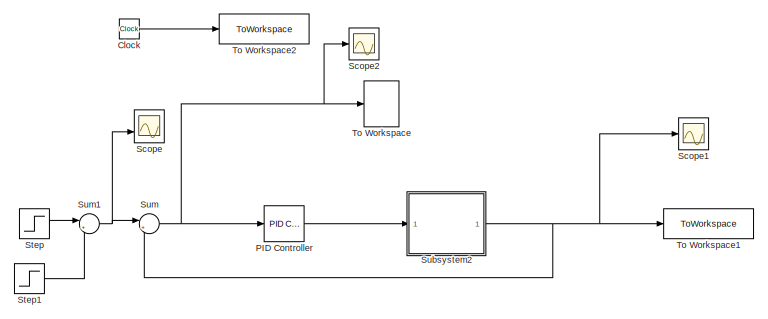
[diagram: root canvas - part 1/3, left side, full height]
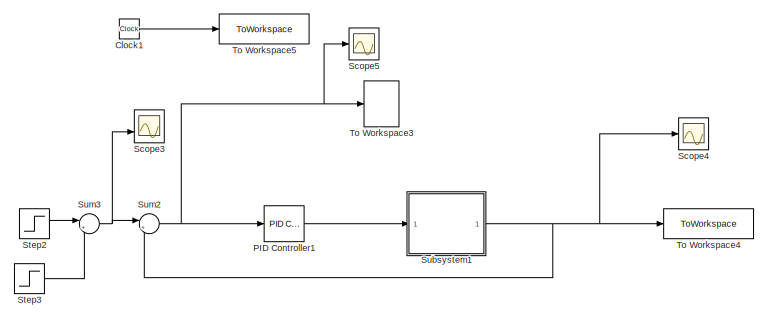
[diagram: root canvas - part 2/3, center side, full height]
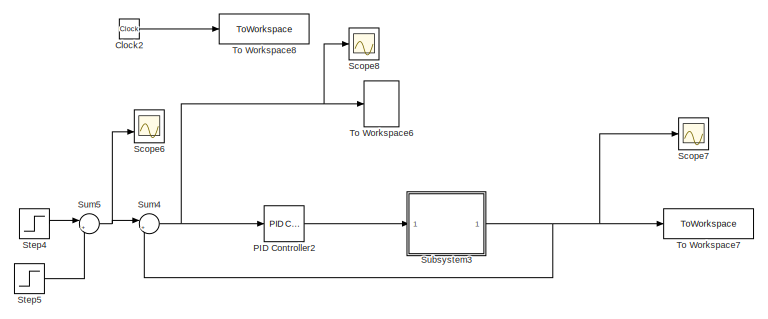
[diagram: root canvas - part 3/3, right side, full height]
MODEL slx_838fb5d9151b
KIND model
CONFIG AbsTol = auto
CONFIG EnableMultiTasking = off
CONFIG FixedStep = auto
CONFIG MaxStep = 0.1
CONFIG MinStep = auto
CONFIG RelTol = 1e-3
CONFIG SampleTimeConstraint = Unconstrained
CONFIG SolverName = VariableStepAuto
CONFIG StartTime = 0
CONFIG StopTime = t_simulation
BLOCK [Clock] Clock
BLOCK [Clock] Clock1
BLOCK [Clock] Clock2
BLOCK [Reference] PID Controller  REF=slpidlib/PID Controller
  LibrarySourceBlock = simulink/Continuous/PID Controller
  SourceBlock = slpidlib/PID Controller
  SourceType = PID 1dof
BLOCK [Reference] PID Controller1  REF=slpidlib/PID Controller
  LibrarySourceBlock = simulink/Continuous/PID Controller
  SourceBlock = slpidlib/PID Controller
  SourceType = PID 1dof
BLOCK [Reference] PID Controller2  REF=slpidlib/PID Controller
  LibrarySourceBlock = simulink/Continuous/PID Controller
  SourceBlock = slpidlib/PID Controller
  SourceType = PID 1dof
BLOCK [Scope] Scope
  Floating = off
  NumInputPorts = 2
  ScopeSpecificationString = Simulink.scopes.TimeScopeBlockCfg('CurrentConfiguration', extmgr.ConfigurationSet(extmgr.Configuration('Core','General UI',true),extmgr.Configuration('Core','Source UI',true),extmgr.Configuration('Sources','WiredSimulink',true),extmgr.Configuration('Visuals','Time Domain',true,'SerializedDisplays',{struct('MinYLimReal','-1.875','MaxYLimReal','16.875','YLabelReal','','MinYLimMag','0.00000','MaxYLim...<+1355ch>
BLOCK [Scope] Scope1
  Floating = off
  NumInputPorts = 1
  ScopeSpecificationString = Simulink.scopes.TimeScopeBlockCfg('CurrentConfiguration', extmgr.ConfigurationSet(extmgr.Configuration('Core','General UI',true),extmgr.Configuration('Core','Source UI',true),extmgr.Configuration('Sources','WiredSimulink',true,'DataLoggingVariableName','ScopeData1'),extmgr.Configuration('Visuals','Time Domain',true,'SerializedDisplays',{struct('MinYLimReal','8.40068','MaxYLimReal','15.54779','YLab...<+1401ch>
BLOCK [Scope] Scope2
  Floating = off
  NumInputPorts = 1
  ScopeSpecificationString = Simulink.scopes.TimeScopeBlockCfg('CurrentConfiguration', extmgr.ConfigurationSet(extmgr.Configuration('Core','General UI',true),extmgr.Configuration('Core','Source UI',true),extmgr.Configuration('Sources','WiredSimulink',true,'DataLoggingVariableName','ScopeData1'),extmgr.Configuration('Visuals','Time Domain',true,'SerializedDisplays',{struct('MinYLimReal','-4.02534','MaxYLimReal','3.78059','YLab...<+1362ch>
BLOCK [Scope] Scope3
  Floating = off
  NumInputPorts = 2
  ScopeSpecificationString = Simulink.scopes.TimeScopeBlockCfg('CurrentConfiguration', extmgr.ConfigurationSet(extmgr.Configuration('Core','General UI',true),extmgr.Configuration('Core','Source UI',true),extmgr.Configuration('Sources','WiredSimulink',true,'DataLoggingVariableName','ScopeData2'),extmgr.Configuration('Visuals','Time Domain',true,'SerializedDisplays',{struct('MinYLimReal','-1.875','MaxYLimReal','16.875','YLabelR...<+1394ch>
BLOCK [Scope] Scope4
  Floating = off
  NumInputPorts = 1
  ScopeSpecificationString = Simulink.scopes.TimeScopeBlockCfg('CurrentConfiguration', extmgr.ConfigurationSet(extmgr.Configuration('Core','General UI',true),extmgr.Configuration('Core','Source UI',true),extmgr.Configuration('Sources','WiredSimulink',true,'DataLoggingVariableName','ScopeData3'),extmgr.Configuration('Visuals','Time Domain',true,'SerializedDisplays',{struct('MinYLimReal','7.15705','MaxYLimReal','18.73364','YLab...<+1401ch>
BLOCK [Scope] Scope5
  Floating = off
  NumInputPorts = 1
  ScopeSpecificationString = Simulink.scopes.TimeScopeBlockCfg('CurrentConfiguration', extmgr.ConfigurationSet(extmgr.Configuration('Core','General UI',true),extmgr.Configuration('Core','Source UI',true),extmgr.Configuration('Sources','WiredSimulink',true,'DataLoggingVariableName','ScopeData4'),extmgr.Configuration('Visuals','Time Domain',true,'SerializedDisplays',{struct('MinYLimReal','-6.45942','MaxYLimReal','6.27327','YLab...<+1362ch>
BLOCK [Scope] Scope6
  Floating = off
  NumInputPorts = 2
  ScopeSpecificationString = Simulink.scopes.TimeScopeBlockCfg('CurrentConfiguration', extmgr.ConfigurationSet(extmgr.Configuration('Core','General UI',true),extmgr.Configuration('Core','Source UI',true),extmgr.Configuration('Sources','WiredSimulink',true,'DataLoggingVariableName','ScopeData5'),extmgr.Configuration('Visuals','Time Domain',true,'SerializedDisplays',{struct('MinYLimReal','-1.875','MaxYLimReal','16.875','YLabelR...<+1394ch>
BLOCK [Scope] Scope7
  Floating = off
  NumInputPorts = 1
  ScopeSpecificationString = Simulink.scopes.TimeScopeBlockCfg('CurrentConfiguration', extmgr.ConfigurationSet(extmgr.Configuration('Core','General UI',true),extmgr.Configuration('Core','Source UI',true),extmgr.Configuration('Sources','WiredSimulink',true,'DataLoggingVariableName','ScopeData6'),extmgr.Configuration('Visuals','Time Domain',true,'SerializedDisplays',{struct('MinYLimReal','8.40068','MaxYLimReal','15.54779','YLab...<+1401ch>
BLOCK [Scope] Scope8
  Floating = off
  NumInputPorts = 1
  ScopeSpecificationString = Simulink.scopes.TimeScopeBlockCfg('CurrentConfiguration', extmgr.ConfigurationSet(extmgr.Configuration('Core','General UI',true),extmgr.Configuration('Core','Source UI',true),extmgr.Configuration('Sources','WiredSimulink',true,'DataLoggingVariableName','ScopeData7'),extmgr.Configuration('Visuals','Time Domain',true,'SerializedDisplays',{struct('MinYLimReal','-6.45942','MaxYLimReal','6.27327','YLab...<+1362ch>
BLOCK [Step] Step
  After = Tzad + dTzad
  Before = Tzad
  SampleTime = 0
  Time = tskok
BLOCK [Step] Step1
  After = dTzad
  SampleTime = 0
  Time = tskok2
BLOCK [Step] Step2
  After = Tzad + dTzad
  Before = Tzad
  SampleTime = 0
  Time = tskok
BLOCK [Step] Step3
  After = dTzad
  SampleTime = 0
  Time = tskok2
BLOCK [Step] Step4
  After = Tzad + dTzad
  Before = Tzad
  SampleTime = 0
  Time = tskok
BLOCK [Step] Step5
  After = dTzad
  SampleTime = 0
  Time = tskok2
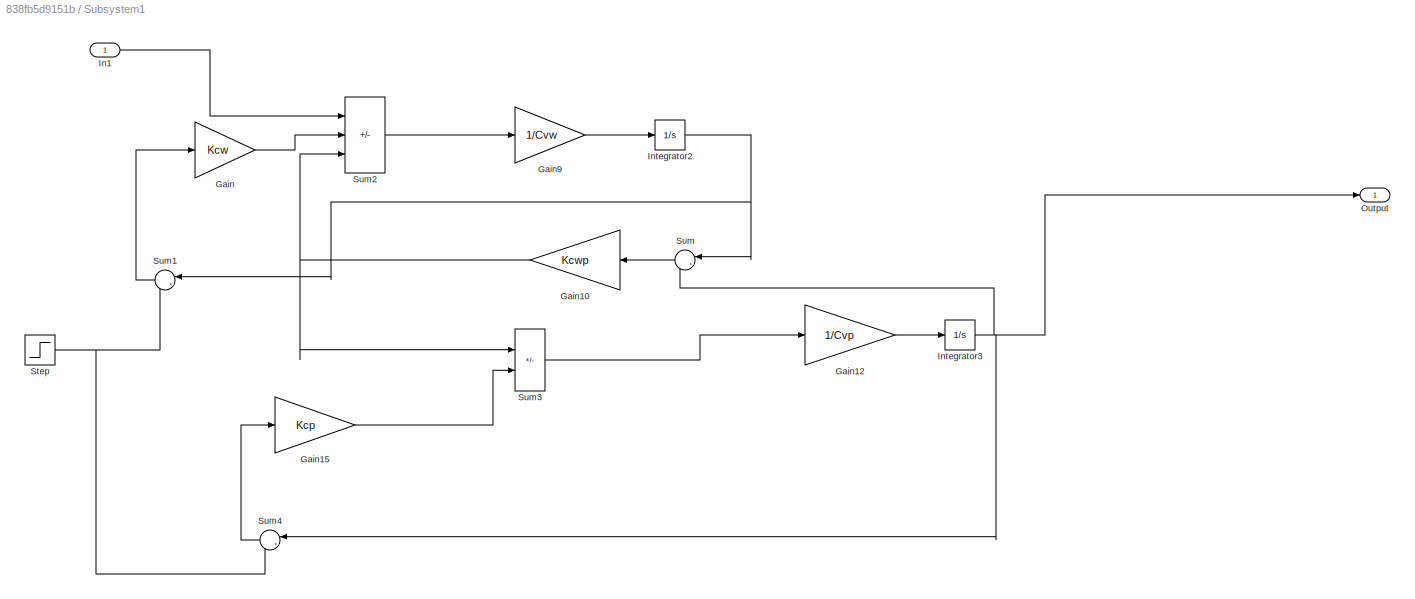
BLOCK [SubSystem] Subsystem1
BLOCK [Gain] Subsystem1/Gain
  Gain = Kcw
BLOCK [Gain] Subsystem1/Gain10
  Gain = Kcwp
  NameLocation = top
BLOCK [Gain] Subsystem1/Gain12
  Gain = 1/Cvp
BLOCK [Gain] Subsystem1/Gain15
  Gain = Kcp
BLOCK [Gain] Subsystem1/Gain9
  Gain = 1/Cvw
BLOCK [Inport] Subsystem1/In1
BLOCK [Integrator] Subsystem1/Integrator2
  InitialCondition = Twew0
BLOCK [Integrator] Subsystem1/Integrator3
  InitialCondition = Tp0
BLOCK [Outport] Subsystem1/Output
BLOCK [Step] Subsystem1/Step
  After = Tzew0 +Tzad
  Before = Tzew0
  SampleTime = 0
  Time = tskok
BLOCK [Sum] Subsystem1/Sum
  Inputs = |+-
  NameLocation = top
BLOCK [Sum] Subsystem1/Sum1
  Inputs = |+-
  NameLocation = top
BLOCK [Sum] Subsystem1/Sum2
  IconShape = rectangular
  Inputs = +--
BLOCK [Sum] Subsystem1/Sum3
  IconShape = rectangular
  Inputs = |+-
BLOCK [Sum] Subsystem1/Sum4
  Inputs = |+-
  NameLocation = top
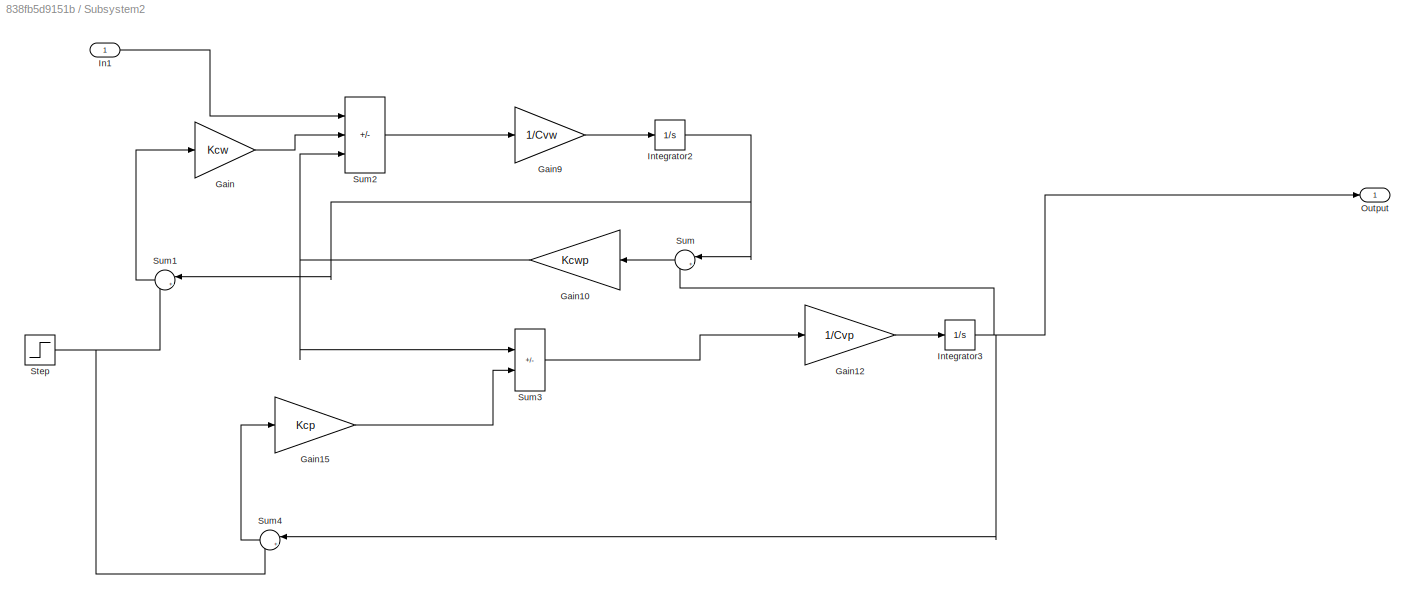
BLOCK [SubSystem] Subsystem2
BLOCK [Gain] Subsystem2/Gain
  Gain = Kcw
BLOCK [Gain] Subsystem2/Gain10
  Gain = Kcwp
  NameLocation = top
BLOCK [Gain] Subsystem2/Gain12
  Gain = 1/Cvp
BLOCK [Gain] Subsystem2/Gain15
  Gain = Kcp
BLOCK [Gain] Subsystem2/Gain9
  Gain = 1/Cvw
BLOCK [Inport] Subsystem2/In1
BLOCK [Integrator] Subsystem2/Integrator2
  InitialCondition = Twew0
BLOCK [Integrator] Subsystem2/Integrator3
  InitialCondition = Tp0
BLOCK [Outport] Subsystem2/Output
BLOCK [Step] Subsystem2/Step
  After = Tzew0 +Tzad
  Before = Tzew0
  SampleTime = 0
  Time = tskok
BLOCK [Sum] Subsystem2/Sum
  Inputs = |+-
  NameLocation = top
BLOCK [Sum] Subsystem2/Sum1
  Inputs = |+-
  NameLocation = top
BLOCK [Sum] Subsystem2/Sum2
  IconShape = rectangular
  Inputs = +--
BLOCK [Sum] Subsystem2/Sum3
  IconShape = rectangular
  Inputs = |+-
BLOCK [Sum] Subsystem2/Sum4
  Inputs = |+-
  NameLocation = top
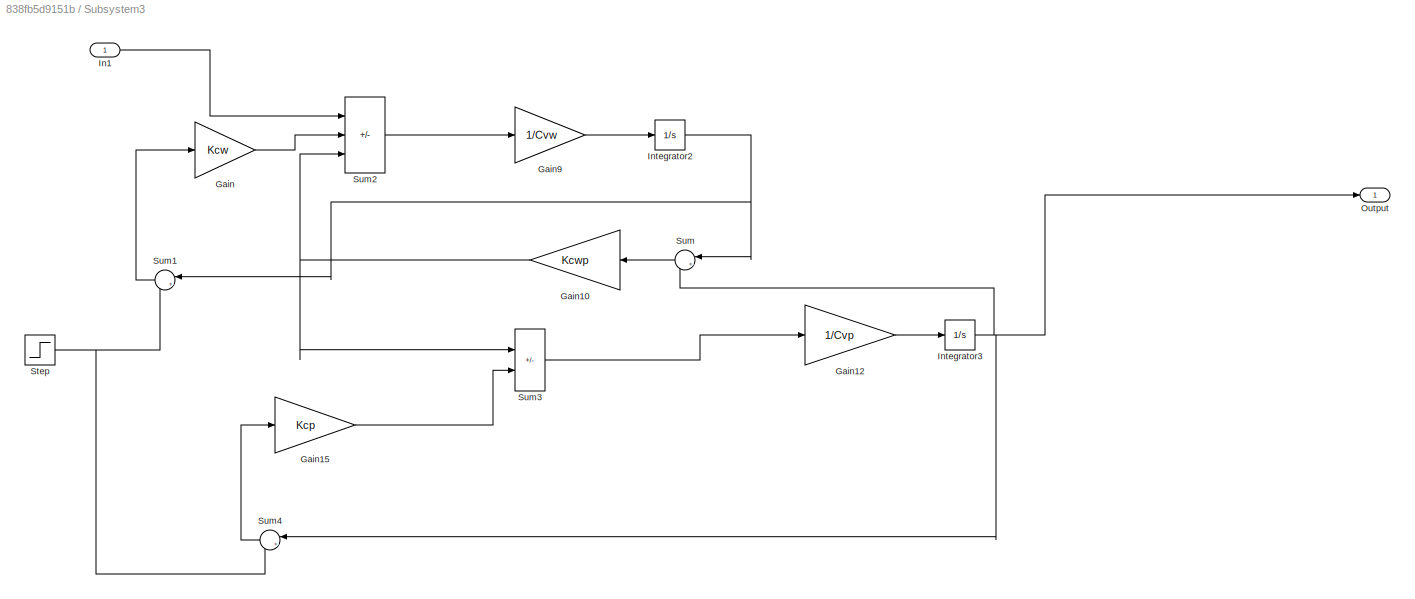
BLOCK [SubSystem] Subsystem3
BLOCK [Gain] Subsystem3/Gain
  Gain = Kcw
BLOCK [Gain] Subsystem3/Gain10
  Gain = Kcwp
  NameLocation = top
BLOCK [Gain] Subsystem3/Gain12
  Gain = 1/Cvp
BLOCK [Gain] Subsystem3/Gain15
  Gain = Kcp
BLOCK [Gain] Subsystem3/Gain9
  Gain = 1/Cvw
BLOCK [Inport] Subsystem3/In1
BLOCK [Integrator] Subsystem3/Integrator2
  InitialCondition = Twew0
BLOCK [Integrator] Subsystem3/Integrator3
  InitialCondition = Tp0
BLOCK [Outport] Subsystem3/Output
BLOCK [Step] Subsystem3/Step
  After = Tzew0 +Tzad
  Before = Tzew0
  SampleTime = 0
  Time = tskok
BLOCK [Sum] Subsystem3/Sum
  Inputs = |+-
  NameLocation = top
BLOCK [Sum] Subsystem3/Sum1
  Inputs = |+-
  NameLocation = top
BLOCK [Sum] Subsystem3/Sum2
  IconShape = rectangular
  Inputs = +--
BLOCK [Sum] Subsystem3/Sum3
  IconShape = rectangular
  Inputs = |+-
BLOCK [Sum] Subsystem3/Sum4
  Inputs = |+-
  NameLocation = top
BLOCK [Sum] Sum
  Inputs = |+-
BLOCK [Sum] Sum1
  Inputs = |+-
BLOCK [Sum] Sum2
  Inputs = |+-
BLOCK [Sum] Sum3
  Inputs = |+-
BLOCK [Sum] Sum4
  Inputs = |+-
BLOCK [Sum] Sum5
  Inputs = |+-
BLOCK [ToWorkspace] To Workspace
  FixptAsFi = on
  MaxDataPoints = inf
  SampleTime = -1
  VariableName = e
BLOCK [ToWorkspace] To Workspace1
  FixptAsFi = on
  MaxDataPoints = inf
  SampleTime = -1
  VariableName = y
BLOCK [ToWorkspace] To Workspace2
  FixptAsFi = on
  MaxDataPoints = inf
  SampleTime = -1
  VariableName = t
BLOCK [ToWorkspace] To Workspace3
  FixptAsFi = on
  MaxDataPoints = inf
  SampleTime = -1
  VariableName = e1
BLOCK [ToWorkspace] To Workspace4
  FixptAsFi = on
  MaxDataPoints = inf
  SampleTime = -1
  VariableName = y1
BLOCK [ToWorkspace] To Workspace5
  FixptAsFi = on
  MaxDataPoints = inf
  SampleTime = -1
  VariableName = t1
BLOCK [ToWorkspace] To Workspace6
  FixptAsFi = on
  MaxDataPoints = inf
  SampleTime = -1
  VariableName = e2
BLOCK [ToWorkspace] To Workspace7
  FixptAsFi = on
  MaxDataPoints = inf
  SampleTime = -1
  VariableName = y2
BLOCK [ToWorkspace] To Workspace8
  FixptAsFi = on
  MaxDataPoints = inf
  SampleTime = -1
  VariableName = t2
LINE Clock1:1 -> To Workspace5:1
LINE Clock2:1 -> To Workspace8:1
LINE Clock:1 -> To Workspace2:1
LINE PID Controller1:1 -> Subsystem1:1
LINE PID Controller2:1 -> Subsystem3:1
LINE PID Controller:1 -> Subsystem2:1
LINE Step1:1 -> Sum1:2
LINE Step2:1 -> Sum3:1
LINE Step3:1 -> Sum3:2
LINE Step4:1 -> Sum5:1
LINE Step5:1 -> Sum5:2
LINE Step:1 -> Sum1:1
NET Subsystem1/Gain10:1 -> Subsystem1/Sum2:3, Subsystem1/Sum3:1
LINE Subsystem1/Gain12:1 -> Subsystem1/Integrator3:1
LINE Subsystem1/Gain15:1 -> Subsystem1/Sum3:2
LINE Subsystem1/Gain9:1 -> Subsystem1/Integrator2:1
LINE Subsystem1/Gain:1 -> Subsystem1/Sum2:2
LINE Subsystem1/In1:1 -> Subsystem1/Sum2:1
NET Subsystem1/Integrator2:1 -> Subsystem1/Sum1:1, Subsystem1/Sum:1
NET Subsystem1/Integrator3:1 -> Subsystem1/Output:1, Subsystem1/Sum4:1, Subsystem1/Sum:2
NET Subsystem1/Step:1 -> Subsystem1/Sum1:2, Subsystem1/Sum4:2
LINE Subsystem1/Sum1:1 -> Subsystem1/Gain:1
LINE Subsystem1/Sum2:1 -> Subsystem1/Gain9:1
LINE Subsystem1/Sum3:1 -> Subsystem1/Gain12:1
LINE Subsystem1/Sum4:1 -> Subsystem1/Gain15:1
LINE Subsystem1/Sum:1 -> Subsystem1/Gain10:1
NET Subsystem1:1 -> Scope4:1, Sum2:2, To Workspace4:1
NET Subsystem2/Gain10:1 -> Subsystem2/Sum2:3, Subsystem2/Sum3:1
LINE Subsystem2/Gain12:1 -> Subsystem2/Integrator3:1
LINE Subsystem2/Gain15:1 -> Subsystem2/Sum3:2
LINE Subsystem2/Gain9:1 -> Subsystem2/Integrator2:1
LINE Subsystem2/Gain:1 -> Subsystem2/Sum2:2
LINE Subsystem2/In1:1 -> Subsystem2/Sum2:1
NET Subsystem2/Integrator2:1 -> Subsystem2/Sum1:1, Subsystem2/Sum:1
NET Subsystem2/Integrator3:1 -> Subsystem2/Output:1, Subsystem2/Sum4:1, Subsystem2/Sum:2
NET Subsystem2/Step:1 -> Subsystem2/Sum1:2, Subsystem2/Sum4:2
LINE Subsystem2/Sum1:1 -> Subsystem2/Gain:1
LINE Subsystem2/Sum2:1 -> Subsystem2/Gain9:1
LINE Subsystem2/Sum3:1 -> Subsystem2/Gain12:1
LINE Subsystem2/Sum4:1 -> Subsystem2/Gain15:1
LINE Subsystem2/Sum:1 -> Subsystem2/Gain10:1
NET Subsystem2:1 -> Scope1:1, Sum:2, To Workspace1:1
NET Subsystem3/Gain10:1 -> Subsystem3/Sum2:3, Subsystem3/Sum3:1
LINE Subsystem3/Gain12:1 -> Subsystem3/Integrator3:1
LINE Subsystem3/Gain15:1 -> Subsystem3/Sum3:2
LINE Subsystem3/Gain9:1 -> Subsystem3/Integrator2:1
LINE Subsystem3/Gain:1 -> Subsystem3/Sum2:2
LINE Subsystem3/In1:1 -> Subsystem3/Sum2:1
NET Subsystem3/Integrator2:1 -> Subsystem3/Sum1:1, Subsystem3/Sum:1
NET Subsystem3/Integrator3:1 -> Subsystem3/Output:1, Subsystem3/Sum4:1, Subsystem3/Sum:2
NET Subsystem3/Step:1 -> Subsystem3/Sum1:2, Subsystem3/Sum4:2
LINE Subsystem3/Sum1:1 -> Subsystem3/Gain:1
LINE Subsystem3/Sum2:1 -> Subsystem3/Gain9:1
LINE Subsystem3/Sum3:1 -> Subsystem3/Gain12:1
LINE Subsystem3/Sum4:1 -> Subsystem3/Gain15:1
LINE Subsystem3/Sum:1 -> Subsystem3/Gain10:1
NET Subsystem3:1 -> Scope7:1, Sum4:2, To Workspace7:1
NET Sum1:1 -> Scope:2, Sum:1
NET Sum2:1 -> PID Controller1:1, Scope5:1, To Workspace3:1
NET Sum3:1 -> Scope3:2, Sum2:1
NET Sum4:1 -> PID Controller2:1, Scope8:1, To Workspace6:1
NET Sum5:1 -> Scope6:2, Sum4:1
NET Sum:1 -> PID Controller:1, Scope2:1, To Workspace:1
note: NET lines group one-source signal fan-out (src -> all destinations, sorted); 1:1 wires keep LINE
